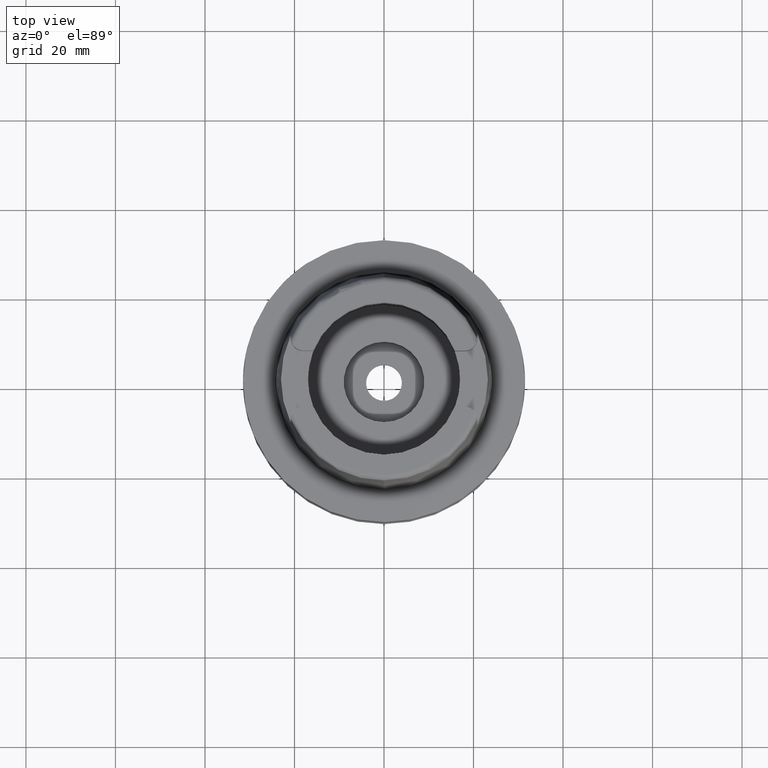
[diagram: clean part render]
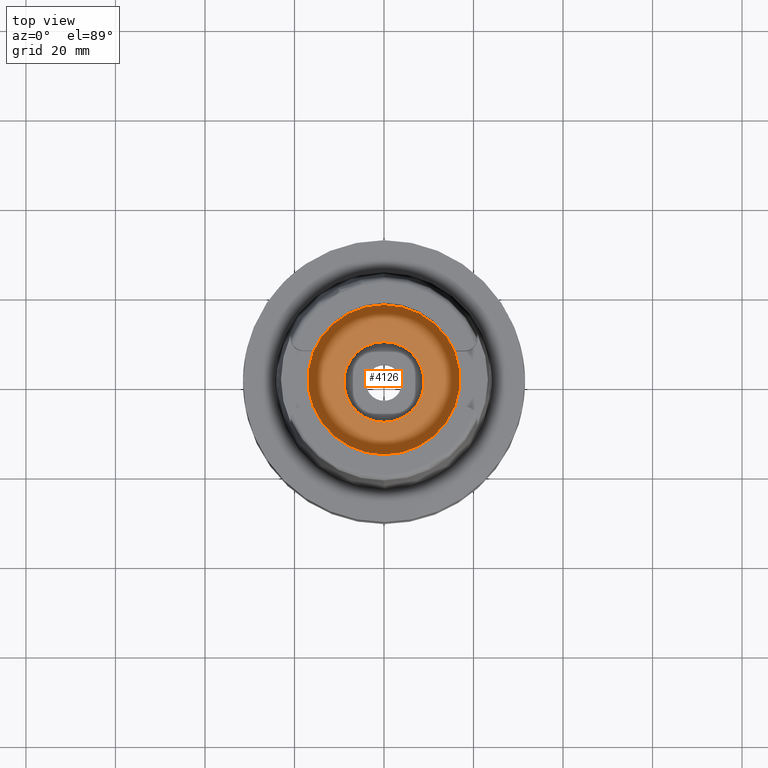
[diagram: same view with one face highlighted and labeled with its STEP entity id]
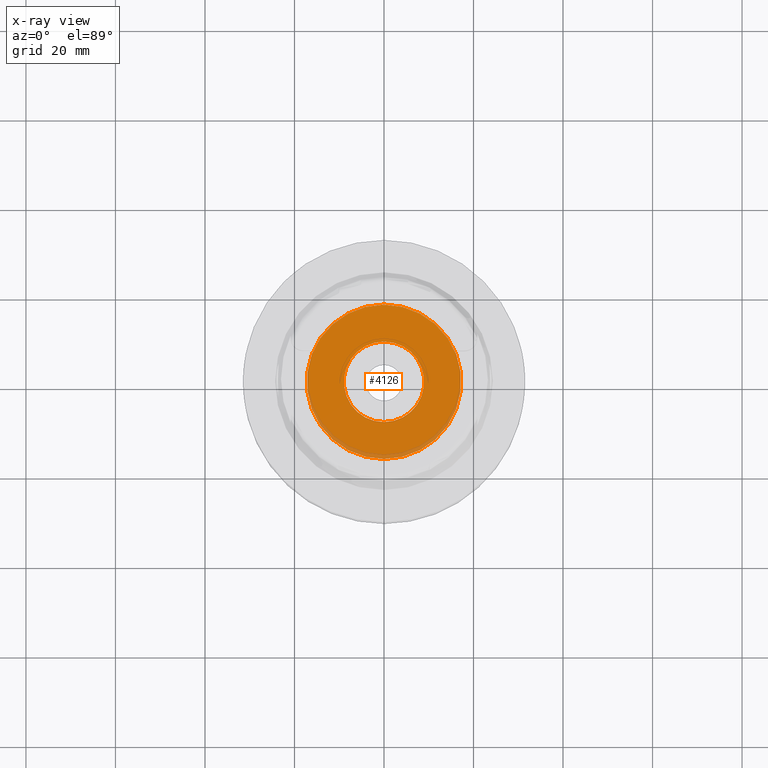
[diagram: x-ray of the same camera — body ghosted, the highlighted face saturated]
A machine part, top view. The second image highlights one B-rep face of the part: STEP entity #4126.
The next image is the same camera in x-ray: the body ghosted, the highlighted face saturated — about 6% of this face is hidden behind the body in this view.
In plain terms, the highlighted planar face has unit normal (0, 0, 1).
Its self-contained STEP definition (entity closure, byte-faithful):
#2011=CARTESIAN_POINT('',(0.E0,0.E0,-9.95E0));
#2012=DIRECTION('',(0.E0,0.E0,-1.E0));
#2013=DIRECTION('',(0.E0,-1.E0,0.E0));
#2014=AXIS2_PLACEMENT_3D('',#2011,#2012,#2013);
#2019=CARTESIAN_POINT('',(0.E0,0.E0,-9.95E0));
#2020=DIRECTION('',(0.E0,0.E0,-1.E0));
#2021=DIRECTION('',(0.E0,1.E0,0.E0));
#2022=AXIS2_PLACEMENT_3D('',#2019,#2020,#2021);
#2027=CARTESIAN_POINT('',(0.E0,0.E0,-9.95E0));
#2028=DIRECTION('',(0.E0,0.E0,1.E0));
#2029=DIRECTION('',(0.E0,-1.E0,0.E0));
#2030=AXIS2_PLACEMENT_3D('',#2027,#2028,#2029);
#2035=CARTESIAN_POINT('',(0.E0,0.E0,-9.95E0));
#2036=DIRECTION('',(0.E0,0.E0,1.E0));
#2037=DIRECTION('',(0.E0,1.E0,0.E0));
#2038=AXIS2_PLACEMENT_3D('',#2035,#2036,#2037);
#2454=CARTESIAN_POINT('',(0.E0,1.725E1,-9.95E0));
#2455=VERTEX_POINT('',#2454);
#2456=CARTESIAN_POINT('',(0.E0,-1.725E1,-9.95E0));
#2457=VERTEX_POINT('',#2456);
#2458=CARTESIAN_POINT('',(0.E0,-9.E0,-9.95E0));
#2459=CARTESIAN_POINT('',(0.E0,9.E0,-9.95E0));
#2460=VERTEX_POINT('',#2458);
#2461=VERTEX_POINT('',#2459);
#4111=CARTESIAN_POINT('',(0.E0,0.E0,-9.95E0));
#4112=DIRECTION('',(0.E0,0.E0,1.E0));
#4113=DIRECTION('',(0.E0,1.E0,0.E0));
#4114=AXIS2_PLACEMENT_3D('',#4111,#4112,#4113);
#4115=PLANE('',#4114);
#4117=ORIENTED_EDGE('',*,*,#4116,.T.);
#4119=ORIENTED_EDGE('',*,*,#4118,.T.);
#4120=EDGE_LOOP('',(#4117,#4119));
#4121=FACE_OUTER_BOUND('',#4120,.F.);
#4122=ORIENTED_EDGE('',*,*,#4104,.T.);
#4123=ORIENTED_EDGE('',*,*,#4093,.T.);
#4124=EDGE_LOOP('',(#4122,#4123));
#4125=FACE_BOUND('',#4124,.F.);
#2015=CIRCLE('',#2014,1.725E1);
#2023=CIRCLE('',#2022,1.725E1);
#2031=CIRCLE('',#2030,9.E0);
#2039=CIRCLE('',#2038,9.E0);
#4093=EDGE_CURVE('',#2461,#2460,#2039,.T.);
#4104=EDGE_CURVE('',#2460,#2461,#2031,.T.);
#4116=EDGE_CURVE('',#2457,#2455,#2015,.T.);
#4118=EDGE_CURVE('',#2455,#2457,#2023,.T.);
#4126=ADVANCED_FACE('',(#4121,#4125),#4115,.T.);